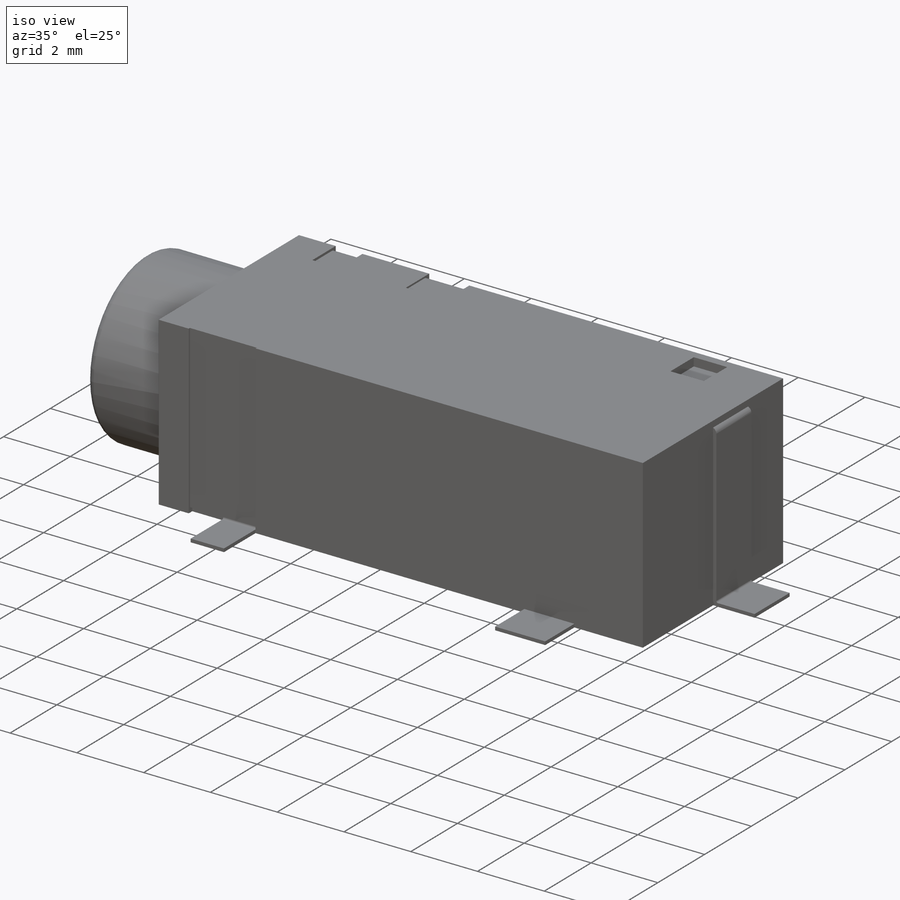
[diagram: iso view]
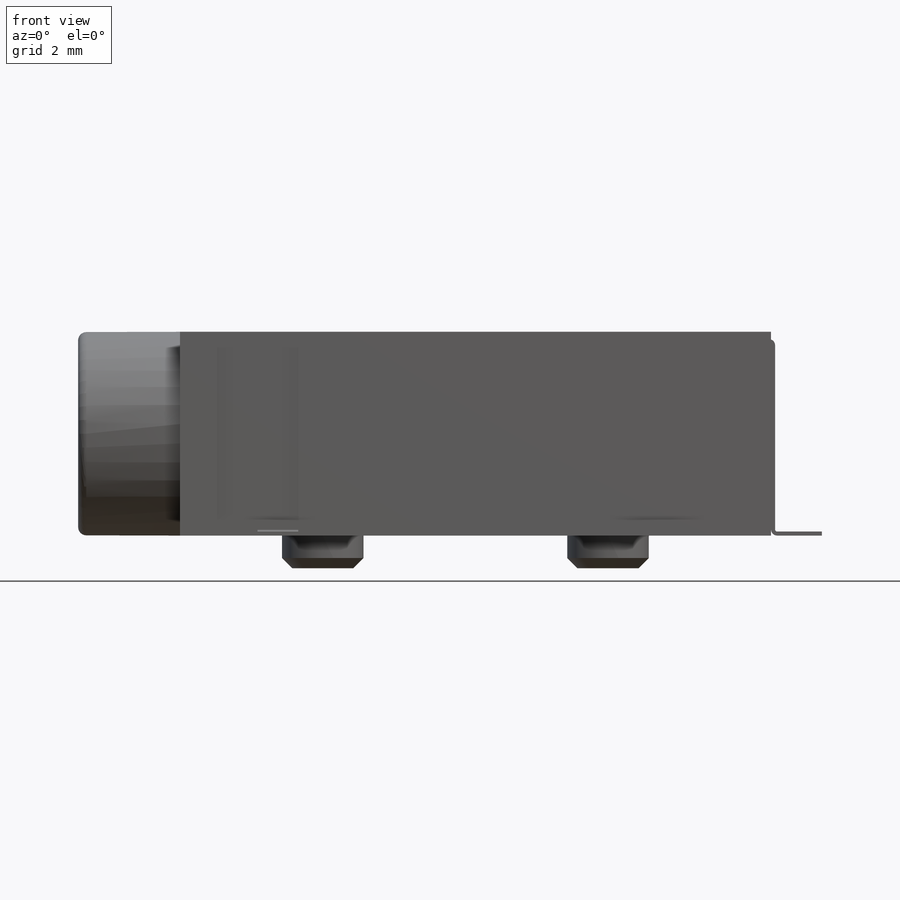
[diagram: front view]
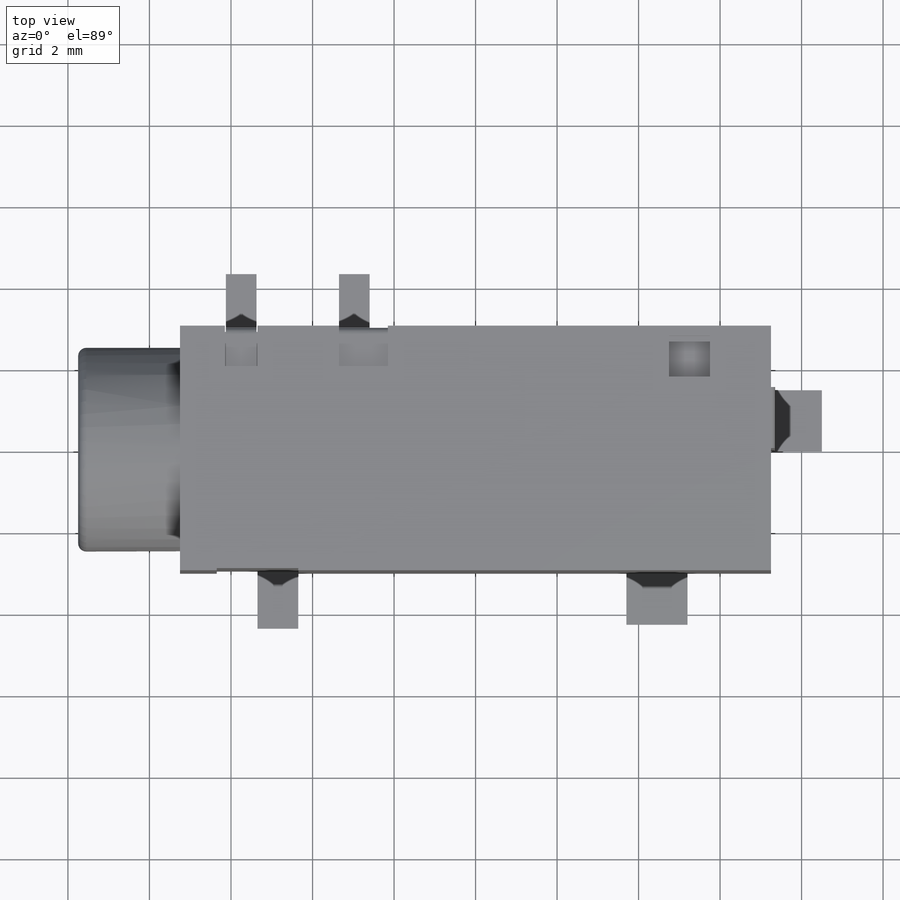
[diagram: top view]
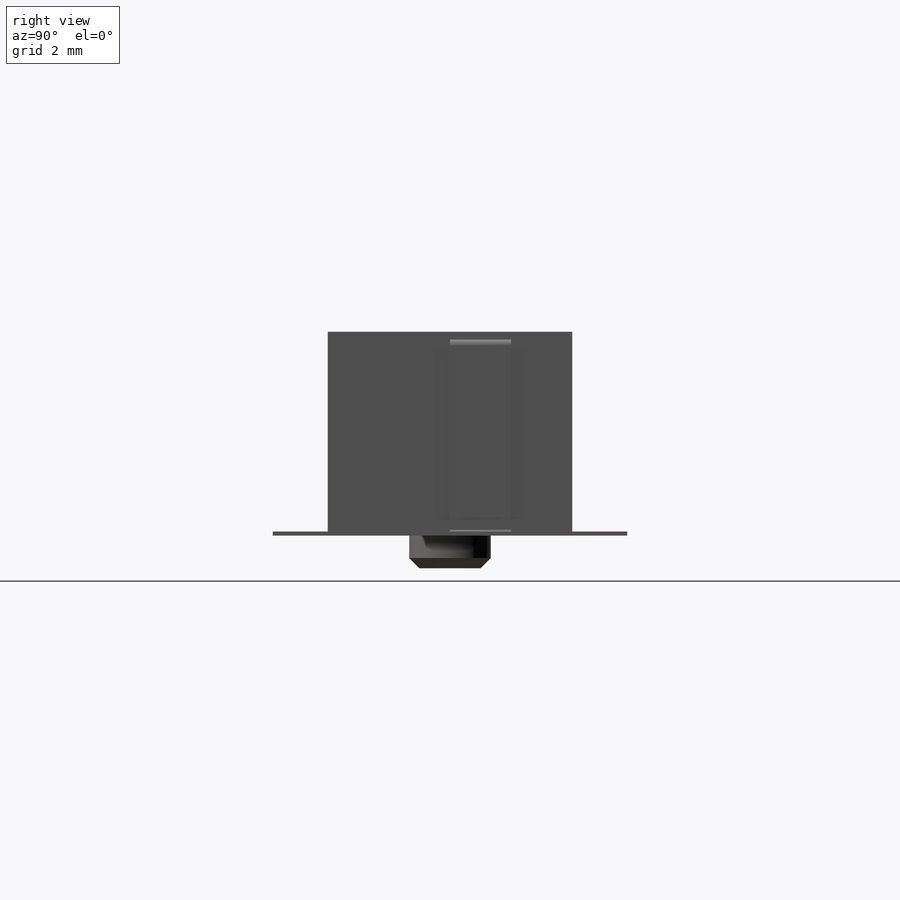
[diagram: right view]
SOLIDWORKS PART (.sldprt)
format: sldprt  version: not decoded by parser v0  size: 1,183,744 bytes
history: native  units: mm
features: sketch x33, sheet_metal_op x14, cut_extrude x8, fillet x7, plane x6, extrude x4, chamfer x2, material x1 + 10 further entries (+13 scaffold rows collapsed; 7 parser-record rows omitted)
feature tree (105):
  scaffold x13  (default folders/planes/origin — collapsed)
  material  "Material <not specified>"
  sketch  "Sketch1"  dims[D1=14.5mm D2=6.0mm]
  extrude  "Boss-Extrude1"  Depth=5mm
  sketch  "Sketch2"  dims[D1=3.6mm]
  extrude  "Boss-Extrude2"  Depth=2.5mm
  cut_extrude  "Cut-Extrude1"  [1 undecoded]
  sketch  "Sketch2<2>"  dims[D1=1.0mm]
  sketch  "Sketch3"  dims[D1=1.0mm D2=1.0mm D3=0.25mm D4=1.5mm]
  cut_extrude  "Cut-Extrude2"  Depth=0.25mm
  plane  "Plane1"
  plane  "Plane2"  Offset=0.75mm
  sketch  "Sketch4"  dims[c1.D1=~1.246675mm c2.D1=0.05mm c2.D2=0.5 c2.D3=0.0mm c2.D6=500.0mm]
  sheet_metal_op  "Base-Flange1"
  sheet_metal_op  "BaseBend2"
  plane  "Plane3"  Offset=11.7mm
  sketch  "Sketch9"  dims[c1.D1=1.25mm c1.Base-Flange2=0.0 c2.D1=0.05mm c2.D2=1.5mm]
  plane  "Plane4"  Offset=2.4mm
  sketch  "Sketch13"  dims[D1=0.5mm D2=1.5mm]
  cut_extrude  "Cut-Extrude3"  Depth=0.15mm
  sketch  "Sketch14"  dims[D1=1.5mm Base-Flange3=0.0]
  sheet_metal_op  "BaseBend3"
  sketch  "Sketch17"
  extrude  "Boss-Extrude3"  Depth=1mm
  plane  "Plane5"  Offset=1.5mm
  sketch  "Sketch20"  dims[D1=0.8mm D2=1.0mm]
  sketch  "Sketch21"
  cut_extrude  "Cut-Extrude4"  Depth=0.15mm
  cut_extrude  "Cut-Extrude5"  Depth=0.15mm
  sketch  "Sketch22"  dims[D1=1.5mm Base-Flange4=0.0]
  sheet_metal_op  "BaseBend4"
  sheet_metal_op  "BaseBend5"
  plane  "Plane6"  Offset=4.3mm
  sketch  "Sketch26"  dims[D1=0.4mm D2=0.8mm]
  cut_extrude  "Cut-Extrude6"  Depth=0.15mm
  sketch  "Sketch27"
  cut_extrude  "Cut-Extrude7"  Depth=0.15mm
  sketch  "Sketch28"  dims[D1=1.5mm Base-Flange5=0.0]
  sheet_metal_op  "BaseBend6"
  sheet_metal_op  "BaseBend7"
  sketch  "Sketch31"  dims[D1=0.45mm]
  cut_extrude  "Cut-Extrude8"  Depth=0.15mm
  chamfer  "Chamfer1"  Distance=0.2mm Angle=45deg
  fillet  "Fillet1"  Radius=0.2mm
  sketch  "Sketch33"  dims[D3=2.0mm D1=3.5mm D2=7.0mm]
  extrude  "Boss-Extrude4"  Depth=0.8mm
  chamfer  "Chamfer2"  Distance=0.25mm Angle=45deg
  sketch  "Bend-Lines1"
  sketch  "Bounding-Box1"
  sheet_metal_op  "Sheet-Metal6"
  "Flat-Pattern6"
  sketch  "Bend-Lines2"
  sketch  "Bounding-Box2"
  parser-record x7  (decoder bookkeeping rows leaked as tree rows — omitted from the tree; the rows remain in map.json)
  "Flatten-<BaseBend2>1"
  fillet  "Sheet-Metal7"  Radius=0.05mm
  sheet_metal_op  "Flat-Pattern7"
  sketch  "Bend-Lines3"
  sketch  "Bounding-Box3"
  fillet  "Sheet-Metal9"  Radius=0.05mm
  sheet_metal_op  "Flat-Pattern9"
  sketch  "Bend-Lines4"
  sketch  "Bounding-Box4"
  "Flatten-<BaseBend3>1"
  fillet  "Sheet-Metal10"  Radius=0.05mm
  sheet_metal_op  "Flat-Pattern9"
  sketch  "Bend-Lines5"
  sketch  "Bounding-Box5"
  "Flatten-<BaseBend3>2"
  fillet  "Sheet-Metal13"  Radius=0.05mm
  sheet_metal_op  "Flat-Pattern13"
  sketch  "Bend-Lines6"
  sketch  "Bounding-Box6"
  "Flatten-<BaseBend4>1"
  "Flatten-<BaseBend5>1"
  fillet  "Sheet-Metal16"  Radius=0.05mm
  sheet_metal_op  "Flat-Pattern16"
  sketch  "Bend-Lines7"
  sketch  "Bounding-Box7"
  "Flatten-<BaseBend6>1"
  "Flatten-<BaseBend7>1"
  fillet  "Sheet-Metal17"  Radius=0.05mm
  sheet_metal_op  "Flat-Pattern16"
  sketch  "Bend-Lines7"
  sketch  "Bounding-Box7"
  "Flatten-<BaseBend6>1"
  "Flatten-<BaseBend7>1"
decode coverage: 34 of 68 modeling features carry decoded parameters; 10 rows unclassified (native names shown)
note: ~ marks probable driven/reference dimensions
note: 1 parameter value undecoded
note: suppression state not decoded; provenance and decode notes live in map.json
